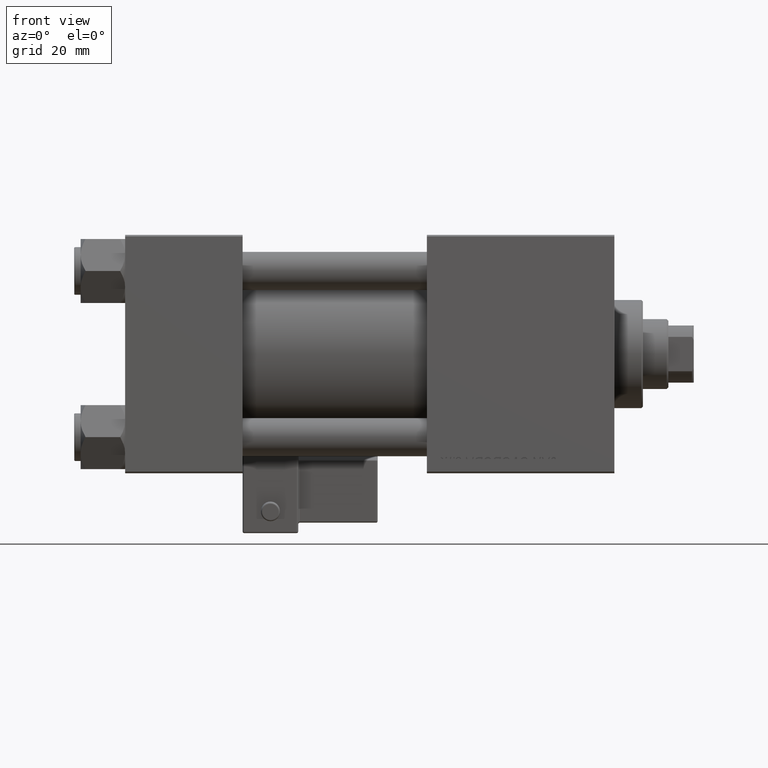
[diagram: clean part render]
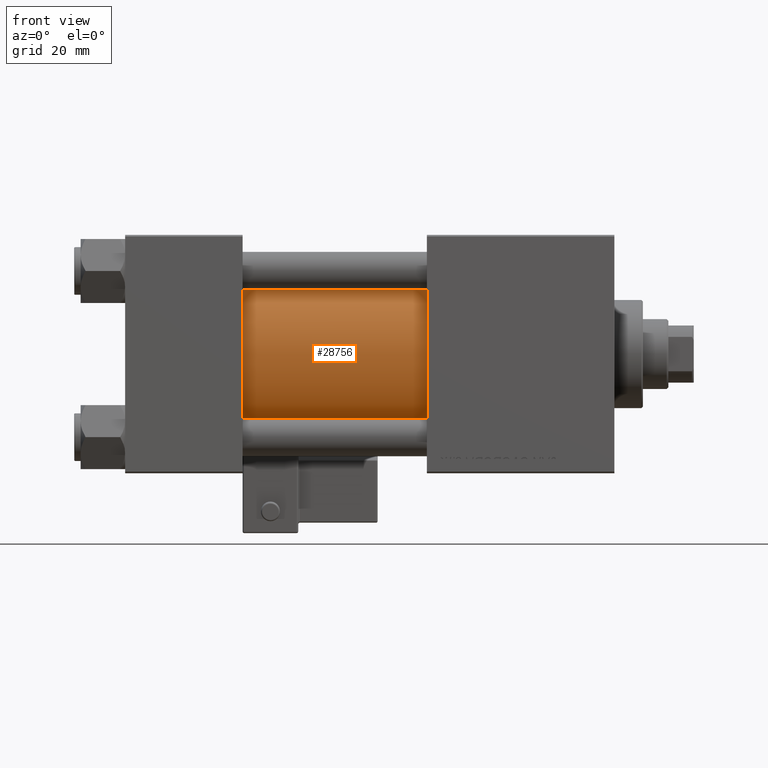
[diagram: same view with one face highlighted and labeled with its STEP entity id]
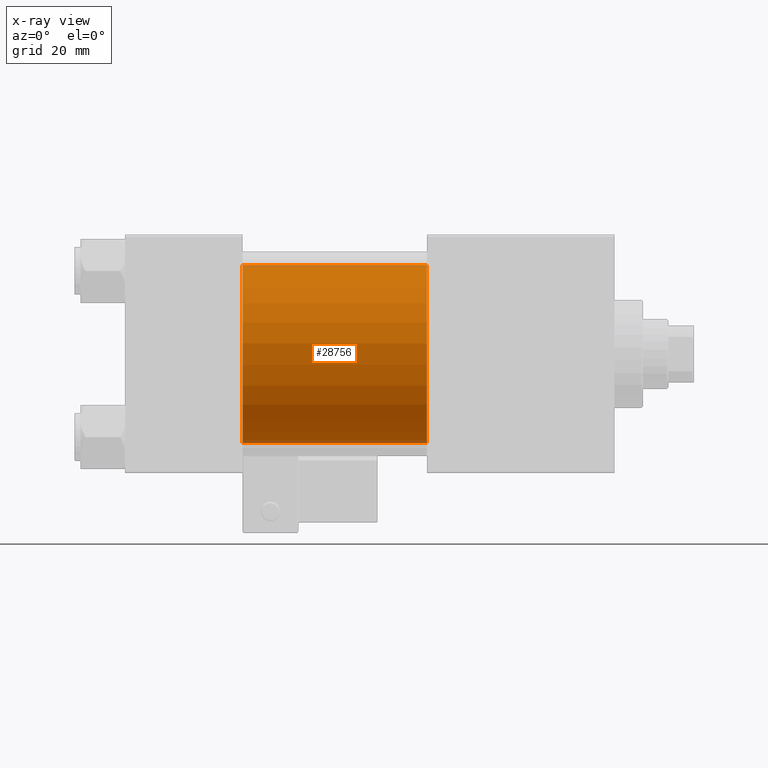
[diagram: x-ray of the same camera — body ghosted, the highlighted face saturated]
A machine part, front view. The second image highlights one B-rep face of the part: STEP entity #28756.
The next image is the same camera in x-ray: the body ghosted, the highlighted face saturated — about 3% of this face is hidden behind the body in this view.
In plain terms, the highlighted cylindrical surface (partial cylindrical patch) has radius 28 mm, axis along (-1, -0, -0).
Its self-contained STEP definition (entity closure, byte-faithful):
#2001 = EDGE_LOOP ( 'NONE', ( #13913, #41135, #34266, #19300 ) ) ;
#2692 = AXIS2_PLACEMENT_3D ( 'NONE', #45084, #17537, #17276 ) ;
#4199 = EDGE_CURVE ( 'NONE', #7979, #44740, #13859, .T. ) ;
#5011 = CARTESIAN_POINT ( 'NONE',  ( 95.00000000000000000, 8.269258236473776482E-16, -28.00000000000000000 ) ) ;
#7979 = VERTEX_POINT ( 'NONE', #22739 ) ;
#10230 = VECTOR ( 'NONE', #44486, 1000.000000000000000 ) ;
#10753 = DIRECTION ( 'NONE',  ( 1.000000000000000000, 0.000000000000000000, 0.000000000000000000 ) ) ;
#12375 = CARTESIAN_POINT ( 'NONE',  ( 95.00000000000000000, -2.602085213965210642E-15, 28.00000000000000000 ) ) ;
#12440 = LINE ( 'NONE', #5011, #10230 ) ;
#13022 = AXIS2_PLACEMENT_3D ( 'NONE', #47046, #10753, #43051 ) ;
#13859 = CIRCLE ( 'NONE', #13022, 28.00000000000000000 ) ;
#13913 = ORIENTED_EDGE ( 'NONE', *, *, #44213, .F. ) ;
#17276 = DIRECTION ( 'NONE',  ( 0.000000000000000000, 0.000000000000000000, 1.000000000000000000 ) ) ;
#17537 = DIRECTION ( 'NONE',  ( 1.000000000000000000, -0.000000000000000000, 0.000000000000000000 ) ) ;
#17776 = AXIS2_PLACEMENT_3D ( 'NONE', #23796, #41434, #40930 ) ;
#19300 = ORIENTED_EDGE ( 'NONE', *, *, #31994, .T. ) ;
#22739 = CARTESIAN_POINT ( 'NONE',  ( 95.00000000000000000, -2.602085213965210642E-15, 28.00000000000000000 ) ) ;
#23444 = CARTESIAN_POINT ( 'NONE',  ( 37.00000000000000000, -2.602085213965210642E-15, 28.00000000000000000 ) ) ;
#23796 = CARTESIAN_POINT ( 'NONE',  ( 95.00000000000000000, -2.602085213965210642E-15, 0.000000000000000000 ) ) ;
#24816 = VECTOR ( 'NONE', #25587, 1000.000000000000000 ) ;
#25587 = DIRECTION ( 'NONE',  ( -1.000000000000000000, -0.000000000000000000, -0.000000000000000000 ) ) ;
#28756 = ADVANCED_FACE ( 'NONE', ( #29248 ), #32982, .T. ) ;
#29248 = FACE_OUTER_BOUND ( 'NONE', #2001, .T. ) ;
#31994 = EDGE_CURVE ( 'NONE', #51042, #38336, #34835, .T. ) ;
#32982 = CYLINDRICAL_SURFACE ( 'NONE', #17776, 28.00000000000000000 ) ;
#34266 = ORIENTED_EDGE ( 'NONE', *, *, #34947, .T. ) ;
#34835 = CIRCLE ( 'NONE', #2692, 28.00000000000000000 ) ;
#34947 = EDGE_CURVE ( 'NONE', #7979, #51042, #36478, .T. ) ;
#35644 = CARTESIAN_POINT ( 'NONE',  ( 95.00000000000000000, 8.269258236473776482E-16, -28.00000000000000000 ) ) ;
#36478 = LINE ( 'NONE', #12375, #24816 ) ;
#38336 = VERTEX_POINT ( 'NONE', #51741 ) ;
#40930 = DIRECTION ( 'NONE',  ( 0.000000000000000000, 0.000000000000000000, 1.000000000000000000 ) ) ;
#41135 = ORIENTED_EDGE ( 'NONE', *, *, #4199, .F. ) ;
#41434 = DIRECTION ( 'NONE',  ( -1.000000000000000000, -0.000000000000000000, -0.000000000000000000 ) ) ;
#43051 = DIRECTION ( 'NONE',  ( 0.000000000000000000, 0.000000000000000000, -1.000000000000000000 ) ) ;
#44213 = EDGE_CURVE ( 'NONE', #44740, #38336, #12440, .T. ) ;
#44486 = DIRECTION ( 'NONE',  ( -1.000000000000000000, -0.000000000000000000, -0.000000000000000000 ) ) ;
#44740 = VERTEX_POINT ( 'NONE', #35644 ) ;
#45084 = CARTESIAN_POINT ( 'NONE',  ( 37.00000000000000000, -2.602085213965210642E-15, 0.000000000000000000 ) ) ;
#47046 = CARTESIAN_POINT ( 'NONE',  ( 95.00000000000000000, -2.602085213965210642E-15, 0.000000000000000000 ) ) ;
#51042 = VERTEX_POINT ( 'NONE', #23444 ) ;
#51741 = CARTESIAN_POINT ( 'NONE',  ( 37.00000000000000000, 8.269258236473776482E-16, -28.00000000000000000 ) ) ;